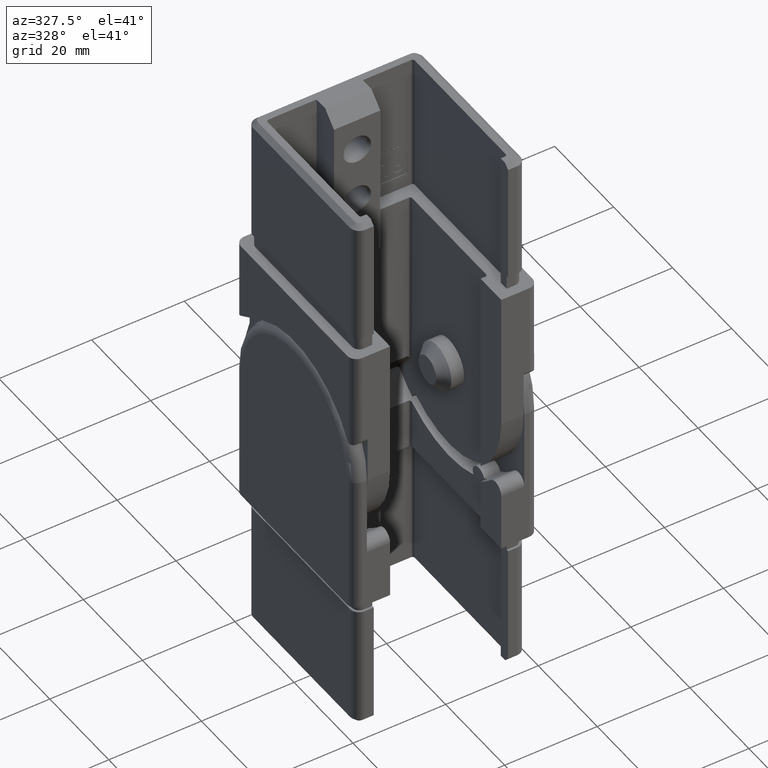
[diagram: clean part render]
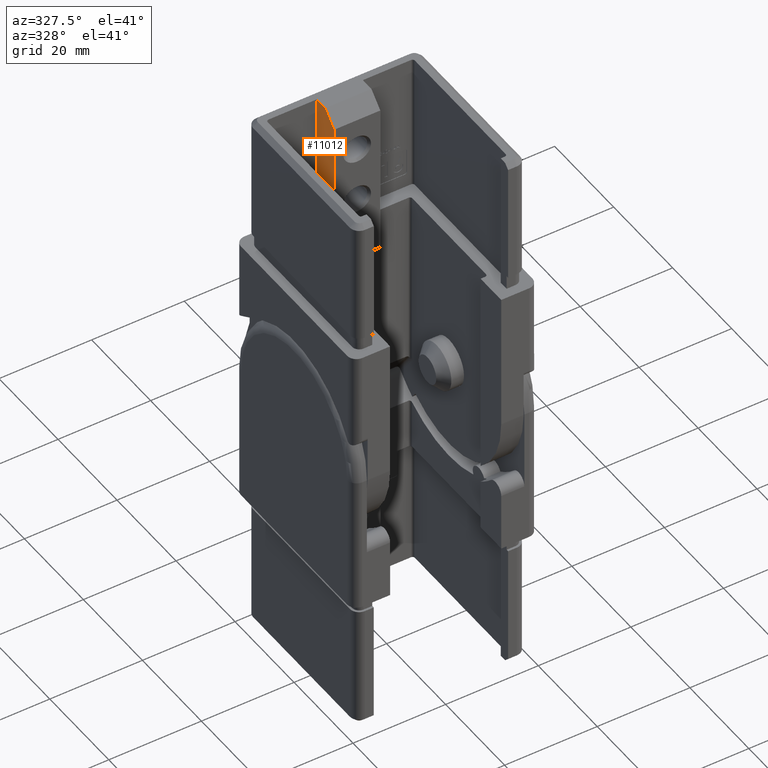
[diagram: same view with one face highlighted and labeled with its STEP entity id]
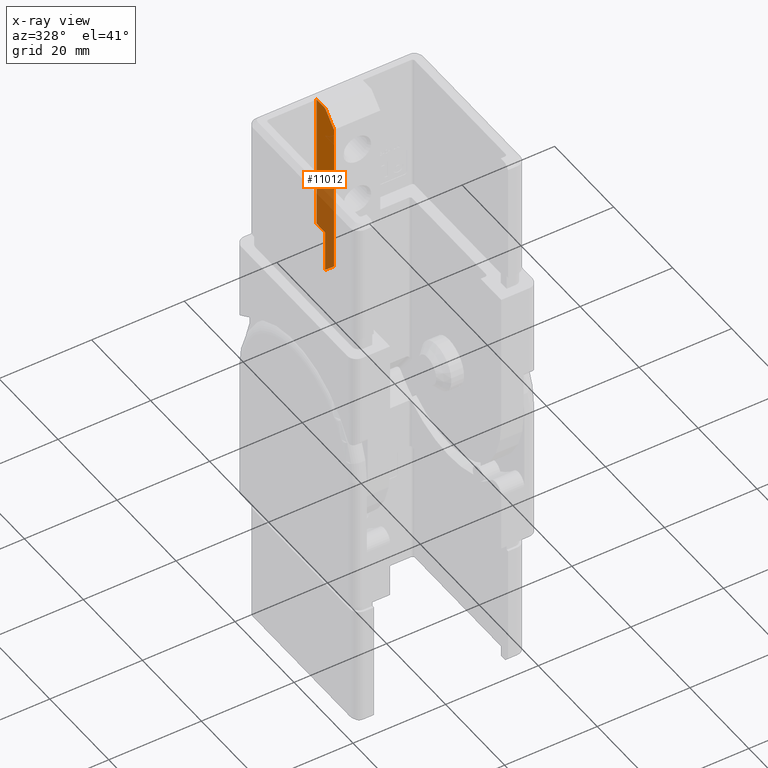
[diagram: x-ray of the same camera — body ghosted, the highlighted face saturated]
A machine part, auxiliary view. The second image highlights one B-rep face of the part: STEP entity #11012.
The next image is the same camera in x-ray: the body ghosted, the highlighted face saturated — about 49% of this face is hidden behind the body in this view.
In plain terms, the highlighted planar face has unit normal (-1, 0, 0).
Its self-contained STEP definition (entity closure, byte-faithful):
#108 = ORIENTED_EDGE ( 'NONE', *, *, #8336, .T. ) ;
#151 = DIRECTION ( 'NONE',  ( 0.0000000000000000000, 0.0000000000000000000, 1.000000000000000000 ) ) ;
#412 = VERTEX_POINT ( 'NONE', #21569 ) ;
#848 = LINE ( 'NONE', #23197, #24565 ) ;
#1091 = VERTEX_POINT ( 'NONE', #22883 ) ;
#1753 = ORIENTED_EDGE ( 'NONE', *, *, #18065, .T. ) ;
#1758 = VECTOR ( 'NONE', #25206, 1000.000000000000100 ) ;
#2207 = CARTESIAN_POINT ( 'NONE',  ( -5.000000000000000000, 15.89999999999999700, 30.00000000000000000 ) ) ;
#3270 = LINE ( 'NONE', #14838, #1758 ) ;
#3381 = VERTEX_POINT ( 'NONE', #24891 ) ;
#3552 = FACE_OUTER_BOUND ( 'NONE', #12194, .T. ) ;
#4265 = EDGE_CURVE ( 'NONE', #12534, #3381, #848, .T. ) ;
#5010 = LINE ( 'NONE', #7305, #16762 ) ;
#5442 = VERTEX_POINT ( 'NONE', #13762 ) ;
#5846 = CARTESIAN_POINT ( 'NONE',  ( -5.000000000000000000, 10.00000000000000200, -5.999999999999994700 ) ) ;
#6177 = VECTOR ( 'NONE', #14289, 1000.000000000000000 ) ;
#6813 = EDGE_CURVE ( 'NONE', #1091, #412, #3270, .T. ) ;
#7305 = CARTESIAN_POINT ( 'NONE',  ( -5.000000000000000000, 10.00000000000000400, -5.999999999999998200 ) ) ;
#7401 = CARTESIAN_POINT ( 'NONE',  ( -5.000000000000000000, 10.00000000000000000, -5.999999999999998200 ) ) ;
#7632 = DIRECTION ( 'NONE',  ( -1.000000000000000000, 0.0000000000000000000, 0.0000000000000000000 ) ) ;
#7819 = DIRECTION ( 'NONE',  ( 0.0000000000000000000, 1.000000000000000000, -0.0000000000000000000 ) ) ;
#7880 = ORIENTED_EDGE ( 'NONE', *, *, #16836, .T. ) ;
#8336 = EDGE_CURVE ( 'NONE', #10093, #1091, #9691, .T. ) ;
#9691 = LINE ( 'NONE', #7401, #10300 ) ;
#10093 = VERTEX_POINT ( 'NONE', #5846 ) ;
#10300 = VECTOR ( 'NONE', #11447, 1000.000000000000000 ) ;
#10656 = VECTOR ( 'NONE', #11254, 1000.000000000000000 ) ;
#10824 = LINE ( 'NONE', #24404, #6177 ) ;
#11012 = ADVANCED_FACE ( 'NONE', ( #3552 ), #17485, .T. ) ;
#11254 = DIRECTION ( 'NONE',  ( 0.0000000000000000000, 1.000000000000000000, -0.0000000000000000000 ) ) ;
#11447 = DIRECTION ( 'NONE',  ( 0.0000000000000000000, 0.0000000000000000000, 1.000000000000000000 ) ) ;
#12194 = EDGE_LOOP ( 'NONE', ( #13189, #1753, #108, #23766, #17262, #7880, #19777 ) ) ;
#12534 = VERTEX_POINT ( 'NONE', #22378 ) ;
#12903 = DIRECTION ( 'NONE',  ( 0.0000000000000000000, -0.7071067811865487900, 0.7071067811865463500 ) ) ;
#13189 = ORIENTED_EDGE ( 'NONE', *, *, #20912, .F. ) ;
#13762 = CARTESIAN_POINT ( 'NONE',  ( -5.000000000000000000, 13.00000000000000200, -8.999999999999984000 ) ) ;
#14289 = DIRECTION ( 'NONE',  ( 0.0000000000000000000, 0.0000000000000000000, 1.000000000000000000 ) ) ;
#14838 = CARTESIAN_POINT ( 'NONE',  ( -5.000000000000000000, -6.500000000000000900, 10.49999999999992500 ) ) ;
#15079 = EDGE_CURVE ( 'NONE', #412, #15302, #18695, .T. ) ;
#15302 = VERTEX_POINT ( 'NONE', #22179 ) ;
#16762 = VECTOR ( 'NONE', #12903, 1000.000000000000000 ) ;
#16836 = EDGE_CURVE ( 'NONE', #15302, #3381, #19902, .T. ) ;
#17262 = ORIENTED_EDGE ( 'NONE', *, *, #15079, .T. ) ;
#17485 = PLANE ( 'NONE',  #22653 ) ;
#18065 = EDGE_CURVE ( 'NONE', #5442, #10093, #5010, .T. ) ;
#18695 = LINE ( 'NONE', #24783, #10656 ) ;
#19742 = CARTESIAN_POINT ( 'NONE',  ( -5.000000000000000000, 10.00000000000000000, -5.999999999999998200 ) ) ;
#19777 = ORIENTED_EDGE ( 'NONE', *, *, #4265, .F. ) ;
#19902 = LINE ( 'NONE', #2207, #22344 ) ;
#20912 = EDGE_CURVE ( 'NONE', #5442, #12534, #10824, .T. ) ;
#21569 = CARTESIAN_POINT ( 'NONE',  ( -5.000000000000000000, 12.99999999999998000, 30.00000000000000000 ) ) ;
#22179 = CARTESIAN_POINT ( 'NONE',  ( -5.000000000000000000, 15.89999999999999700, 30.00000000000000000 ) ) ;
#22344 = VECTOR ( 'NONE', #23939, 1000.000000000000000 ) ;
#22378 = CARTESIAN_POINT ( 'NONE',  ( -5.000000000000000000, 13.00000000000000200, 0.0000000000000000000 ) ) ;
#22653 = AXIS2_PLACEMENT_3D ( 'NONE', #19742, #7632, #151 ) ;
#22883 = CARTESIAN_POINT ( 'NONE',  ( -5.000000000000000000, 10.00000000000000000, 27.00000000000000400 ) ) ;
#23197 = CARTESIAN_POINT ( 'NONE',  ( -5.000000000000000000, 0.0000000000000000000, 0.0000000000000000000 ) ) ;
#23766 = ORIENTED_EDGE ( 'NONE', *, *, #6813, .T. ) ;
#23939 = DIRECTION ( 'NONE',  ( -0.0000000000000000000, -0.0000000000000000000, -1.000000000000000000 ) ) ;
#24404 = CARTESIAN_POINT ( 'NONE',  ( -5.000000000000000000, 13.00000000000000200, -5.999999999999998200 ) ) ;
#24565 = VECTOR ( 'NONE', #7819, 1000.000000000000000 ) ;
#24783 = CARTESIAN_POINT ( 'NONE',  ( -5.000000000000000000, 0.0000000000000000000, 30.00000000000000000 ) ) ;
#24891 = CARTESIAN_POINT ( 'NONE',  ( -5.000000000000000000, 15.89999999999999700, 0.0000000000000000000 ) ) ;
#25206 = DIRECTION ( 'NONE',  ( -0.0000000000000000000, 0.7071067811865459100, 0.7071067811865491300 ) ) ;